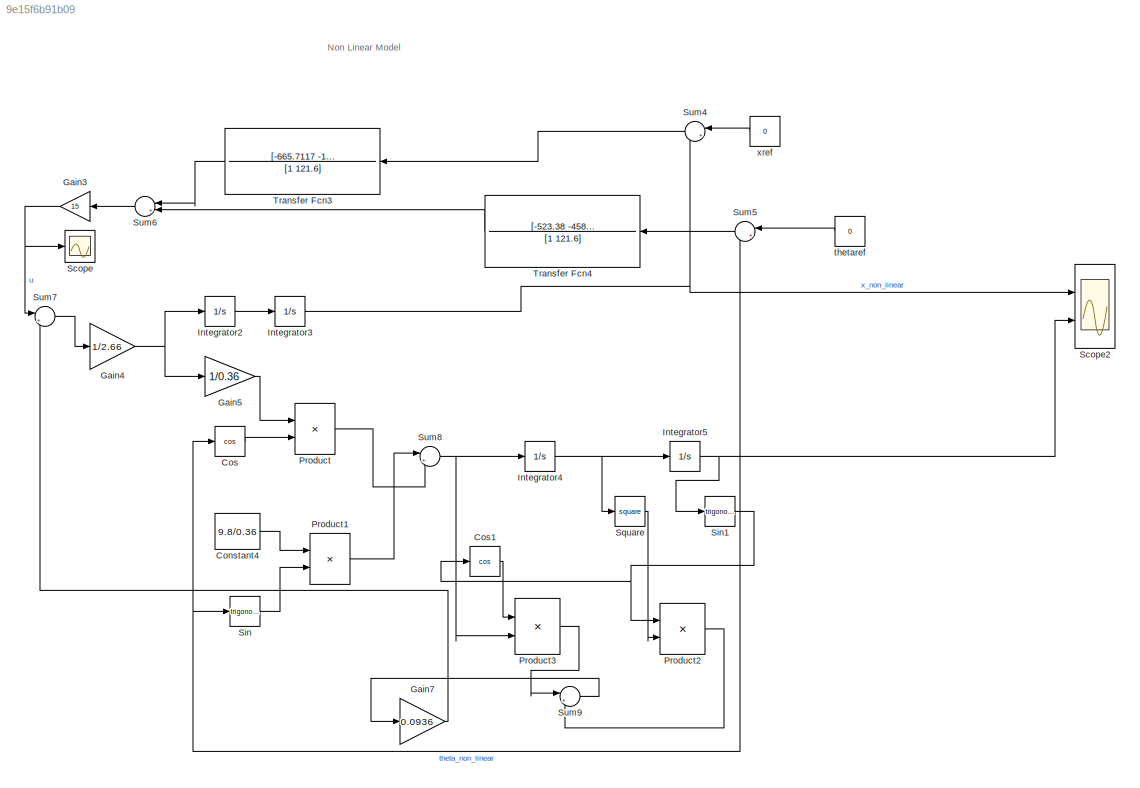
MODEL slx_9e15f6b91b09
KIND model
CONFIG AbsTol = auto
CONFIG EnableMultiTasking = off
CONFIG FixedStep = auto
CONFIG MaxStep = auto
CONFIG MinStep = auto
CONFIG RelTol = 1e-3
CONFIG SampleTimeConstraint = Unconstrained
CONFIG SolverName = VariableStepAuto
CONFIG StartTime = 0.0
CONFIG StopTime = 10.0
BLOCK [Constant] Constant4
  Value = 9.8/0.36
BLOCK [Trigonometry] Cos
  Operator = cos
  Ports = [1, 1]
BLOCK [Trigonometry] Cos1
  Operator = cos
  Ports = [1, 1]
BLOCK [Gain] Gain3
  Gain = 15
BLOCK [Gain] Gain4
  Gain = 1/2.66
BLOCK [Gain] Gain5
  Gain = 1/0.36
BLOCK [Gain] Gain7
  Gain = 0.0936
BLOCK [Integrator] Integrator2
  Ports = [1, 1]
BLOCK [Integrator] Integrator3
  Ports = [1, 1]
BLOCK [Integrator] Integrator4
  Ports = [1, 1]
BLOCK [Integrator] Integrator5
  InitialCondition = 0.15
  Ports = [1, 1]
BLOCK [Product] Product
  Ports = [2, 1]
BLOCK [Product] Product1
  Ports = [2, 1]
BLOCK [Product] Product2
  Ports = [2, 1]
BLOCK [Product] Product3
  Ports = [2, 1]
BLOCK [Scope] Scope
  Floating = off
  NumInputPorts = 1
  Ports = [1]
  ScopeSpecificationString = Simulink.scopes.TimeScopeBlockCfg('CurrentConfiguration', extmgr.ConfigurationSet(extmgr.Configuration('Core','General UI',true,'FigureColor',[1 1 1]),extmgr.Configuration('Core','Source UI',true),extmgr.Configuration('Sources','WiredSimulink',true,'DataLoggingVariableName','ScopeData1'),extmgr.Configuration('Visuals','Time Domain',true,'SerializedDisplays',{struct('MinYLimReal','-384.81611','MaxY...<+1582ch>
BLOCK [Scope] Scope2
  Floating = off
  NumInputPorts = 2
  Ports = [2]
  ScopeSpecificationString = Simulink.scopes.TimeScopeBlockCfg('CurrentConfiguration', extmgr.ConfigurationSet(extmgr.Configuration('Core','General UI',true,'FigureColor',[1 1 1]),extmgr.Configuration('Core','Source UI',true),extmgr.Configuration('Sources','WiredSimulink',true),extmgr.Configuration('Visuals','Time Domain',true,'SerializedDisplays',{struct('MinYLimReal','-0.04073','MaxYLimReal','0.12294','YLabelReal','','MinYL...<+2258ch>
BLOCK [Trigonometry] Sin
  Ports = [1, 1]
BLOCK [Trigonometry] Sin1
  Ports = [1, 1]
BLOCK [Math] Square
  Operator = square
  Ports = [1, 1]
BLOCK [Sum] Sum4
  Inputs = |+-
  Ports = [2, 1]
BLOCK [Sum] Sum5
  Inputs = |+-
  Ports = [2, 1]
BLOCK [Sum] Sum6
  Inputs = |++
  Ports = [2, 1]
BLOCK [Sum] Sum7
  Inputs = |+-
  Ports = [2, 1]
BLOCK [Sum] Sum8
  Inputs = |+-
  Ports = [2, 1]
BLOCK [Sum] Sum9
  Inputs = |+-
  Ports = [2, 1]
BLOCK [TransferFcn] Transfer Fcn3
  Denominator = [1 121.6]
  Numerator = [-665.7117 -1282]
BLOCK [TransferFcn] Transfer Fcn4
  Denominator = [1 121.6]
  Numerator = [-523.38 -4586.7]
BLOCK [Constant] thetaref
  Value = 0
BLOCK [Constant] xref
  Value = 0
ANNOTATION (root): Non Linear Model
LINE Constant4:1 -> Product1:1
LINE Cos1:1 -> Product3:1
LINE Cos:1 -> Product:2
NET Gain3:1 -> Scope:1, Sum7:1
NET Gain4:1 -> Gain5:1, Integrator2:1
LINE Gain5:1 -> Product:1
LINE Gain7:1 -> Sum7:2
LINE Integrator2:1 -> Integrator3:1
NET Integrator3:1 -> Scope2:1, Sum4:2
NET Integrator4:1 -> Integrator5:1, Square:1
NET Integrator5:1 -> Cos:1, Scope2:2, Sin1:1, Sin:1, Sum5:2
LINE Product1:1 -> Sum8:1
LINE Product2:1 -> Sum9:2
LINE Product3:1 -> Sum9:1
LINE Product:1 -> Sum8:2
NET Sin1:1 -> Cos1:1, Product2:1
LINE Sin:1 -> Product1:2
LINE Square:1 -> Product2:2
LINE Sum4:1 -> Transfer Fcn3:1
LINE Sum5:1 -> Transfer Fcn4:1
LINE Sum6:1 -> Gain3:1
LINE Sum7:1 -> Gain4:1
NET Sum8:1 -> Integrator4:1, Product3:2
LINE Sum9:1 -> Gain7:1
LINE Transfer Fcn3:1 -> Sum6:1
LINE Transfer Fcn4:1 -> Sum6:2
LINE thetaref:1 -> Sum5:1
LINE xref:1 -> Sum4:1
note: NET lines group one-source signal fan-out (src -> all destinations, sorted); 1:1 wires keep LINE
